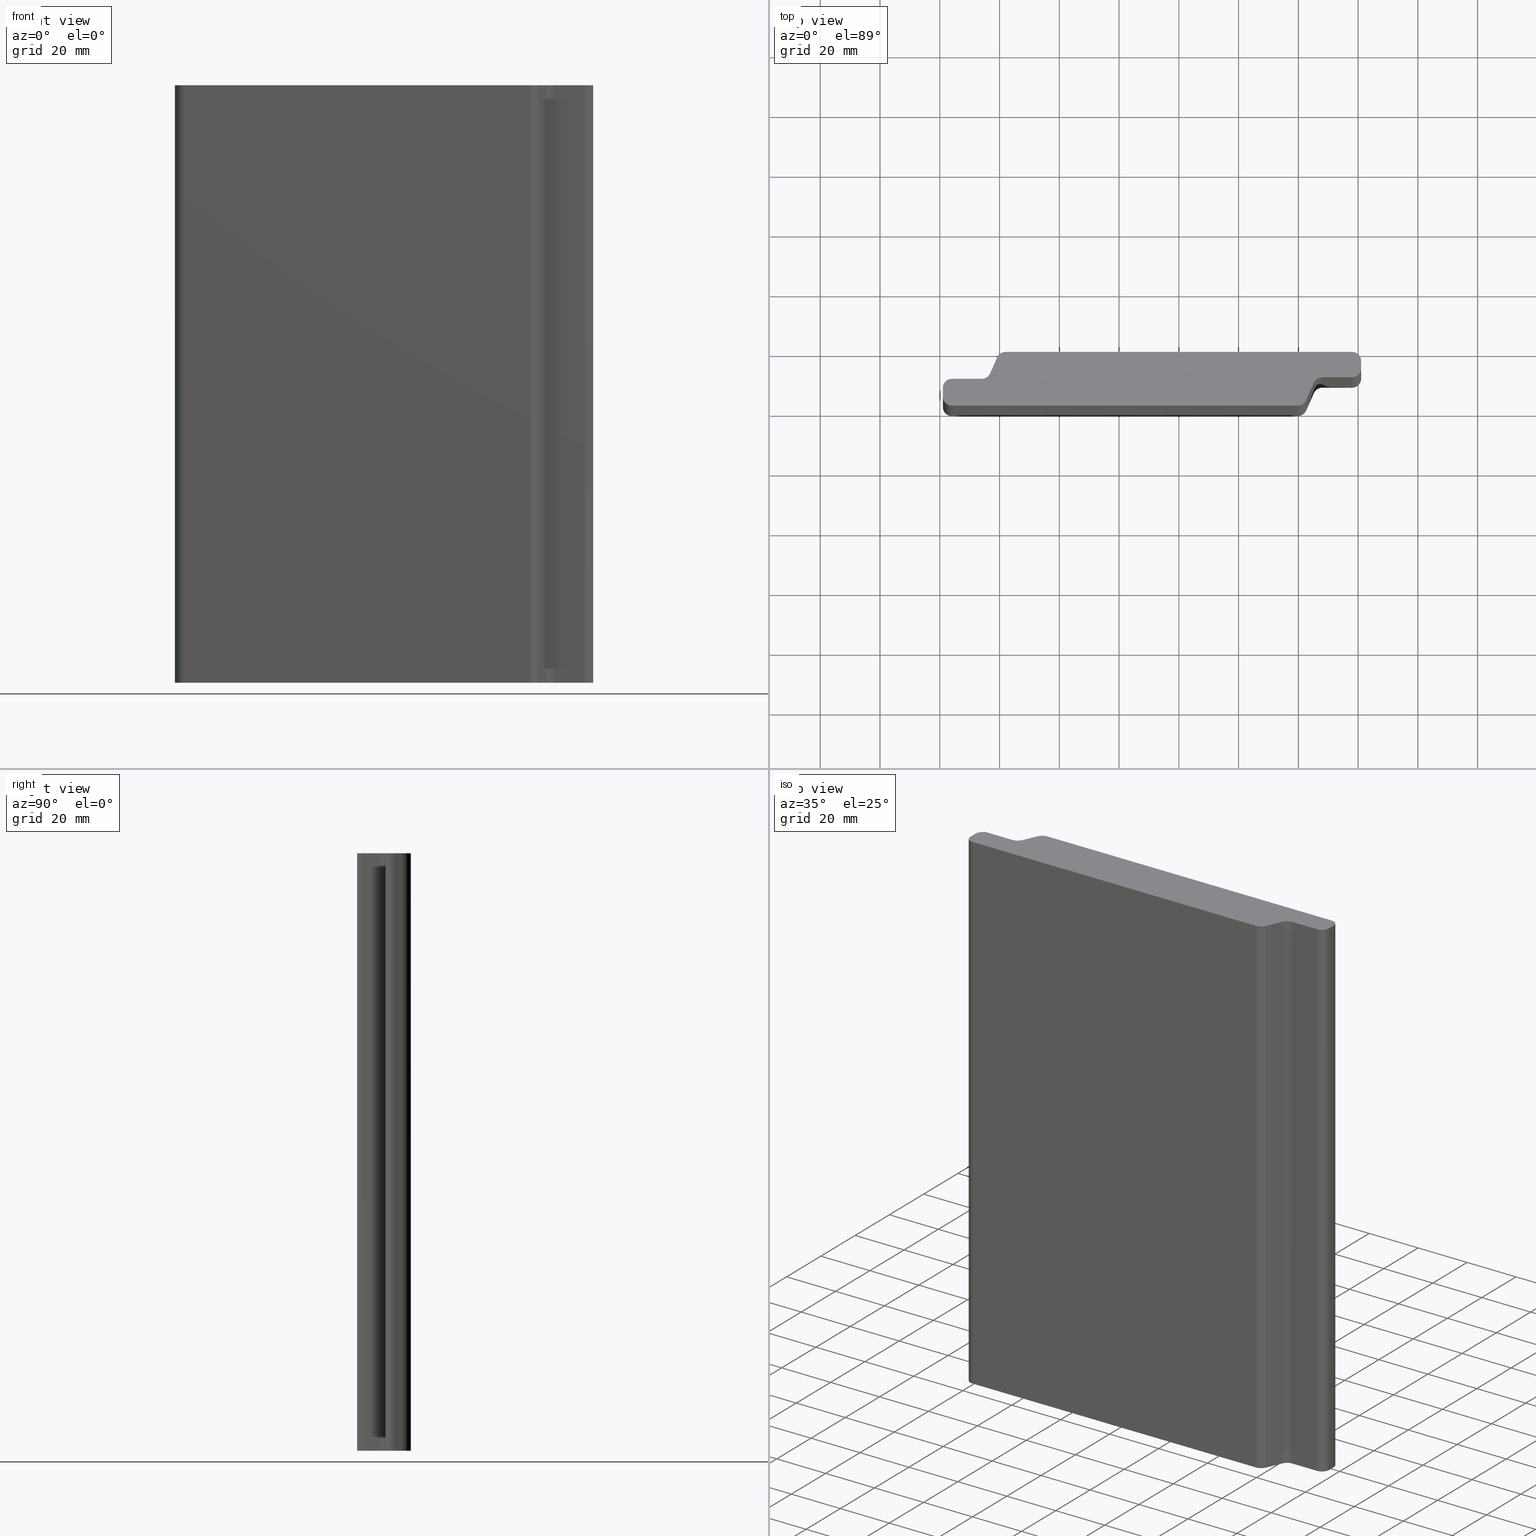
[diagram: canonical four-view strip — front | top / right | iso, engineering-drawing reading convention]
A machine part, canonical four-view strip (front | top / right | iso — engineering-drawing reading convention). The complete STEP part file that produces these views, byte-faithful:
ISO-10303-21;
HEADER;
/* Generated by software containing ST-Developer
 * from STEP Tools, Inc. (www.steptools.com) 
 */

FILE_DESCRIPTION(
/* description */ (''),
/* implementation_level */ '2;1');

FILE_NAME(
/* name */ 
'C:/Users/Eigenaar/Documents/Andrew/Ventura Welding (Workshop)/For Con
struction 2021/PlatoWood profile drawings/PlatoWood profiles, STEP/Pla
toWood 18x140 P01 (Channelsiding).step',
/* time_stamp */ '2021-11-11T07:43:40+01:00',
/* author */ (''),
/* organization */ (''),
/* preprocessor_version */ 'ST-DEVELOPER v18.1',
/* originating_system */ 'Autodesk Translation Framework v10.10.0.1391',

/* authorisation */ '');

FILE_SCHEMA (('AUTOMOTIVE_DESIGN { 1 0 10303 214 3 1 1 }'));
ENDSEC;

DATA;
#10=MECHANICAL_DESIGN_GEOMETRIC_PRESENTATION_REPRESENTATION('',(#13),#595);
#11=SHAPE_REPRESENTATION_RELATIONSHIP('SRR','None',#602,#12);
#12=ADVANCED_BREP_SHAPE_REPRESENTATION('',(#14),#594);
#13=STYLED_ITEM('',(#612),#14);
#14=MANIFOLD_SOLID_BREP('Body1',#343);
#15=CIRCLE('',#359,2.99999999999998);
#16=CIRCLE('',#360,2.99999999999998);
#17=CIRCLE('',#363,2.99999999595948);
#18=CIRCLE('',#364,2.99999999595948);
#19=CIRCLE('',#367,2.99999999996857);
#20=CIRCLE('',#368,2.99999999996857);
#21=CIRCLE('',#371,2.99999999996301);
#22=CIRCLE('',#372,2.99999999996301);
#23=CIRCLE('',#375,2.99999999999999);
#24=CIRCLE('',#376,2.99999999999999);
#25=CIRCLE('',#379,2.99999999482045);
#26=CIRCLE('',#380,2.99999999482045);
#27=CIRCLE('',#383,2.99999999999422);
#28=CIRCLE('',#384,2.99999999999422);
#29=CIRCLE('',#387,3.00000005179335);
#30=CIRCLE('',#388,3.00000005179335);
#31=CYLINDRICAL_SURFACE('',#358,2.99999999999998);
#32=CYLINDRICAL_SURFACE('',#362,2.99999999595948);
#33=CYLINDRICAL_SURFACE('',#366,2.99999999996857);
#34=CYLINDRICAL_SURFACE('',#370,2.99999999996301);
#35=CYLINDRICAL_SURFACE('',#374,2.99999999999999);
#36=CYLINDRICAL_SURFACE('',#378,2.99999999482045);
#37=CYLINDRICAL_SURFACE('',#382,2.99999999999422);
#38=CYLINDRICAL_SURFACE('',#386,3.00000005179335);
#39=FACE_OUTER_BOUND('',#57,.T.);
#40=FACE_OUTER_BOUND('',#58,.T.);
#41=FACE_OUTER_BOUND('',#59,.T.);
#42=FACE_OUTER_BOUND('',#60,.T.);
#43=FACE_OUTER_BOUND('',#61,.T.);
#44=FACE_OUTER_BOUND('',#62,.T.);
#45=FACE_OUTER_BOUND('',#63,.T.);
#46=FACE_OUTER_BOUND('',#64,.T.);
#47=FACE_OUTER_BOUND('',#65,.T.);
#48=FACE_OUTER_BOUND('',#66,.T.);
#49=FACE_OUTER_BOUND('',#67,.T.);
#50=FACE_OUTER_BOUND('',#68,.T.);
#51=FACE_OUTER_BOUND('',#69,.T.);
#52=FACE_OUTER_BOUND('',#70,.T.);
#53=FACE_OUTER_BOUND('',#71,.T.);
#54=FACE_OUTER_BOUND('',#72,.T.);
#55=FACE_OUTER_BOUND('',#73,.T.);
#56=FACE_OUTER_BOUND('',#74,.T.);
#57=EDGE_LOOP('',(#219,#220,#221,#222));
#58=EDGE_LOOP('',(#223,#224,#225,#226));
#59=EDGE_LOOP('',(#227,#228,#229,#230));
#60=EDGE_LOOP('',(#231,#232,#233,#234));
#61=EDGE_LOOP('',(#235,#236,#237,#238));
#62=EDGE_LOOP('',(#239,#240,#241,#242));
#63=EDGE_LOOP('',(#243,#244,#245,#246));
#64=EDGE_LOOP('',(#247,#248,#249,#250));
#65=EDGE_LOOP('',(#251,#252,#253,#254));
#66=EDGE_LOOP('',(#255,#256,#257,#258));
#67=EDGE_LOOP('',(#259,#260,#261,#262));
#68=EDGE_LOOP('',(#263,#264,#265,#266));
#69=EDGE_LOOP('',(#267,#268,#269,#270));
#70=EDGE_LOOP('',(#271,#272,#273,#274));
#71=EDGE_LOOP('',(#275,#276,#277,#278));
#72=EDGE_LOOP('',(#279,#280,#281,#282));
#73=EDGE_LOOP('',(#283,#284,#285,#286,#287,#288,#289,#290,#291,#292,#293,
#294,#295,#296,#297,#298));
#74=EDGE_LOOP('',(#299,#300,#301,#302,#303,#304,#305,#306,#307,#308,#309,
#310,#311,#312,#313,#314));
#75=LINE('',#497,#107);
#76=LINE('',#499,#108);
#77=LINE('',#501,#109);
#78=LINE('',#502,#110);
#79=LINE('',#508,#111);
#80=LINE('',#511,#112);
#81=LINE('',#513,#113);
#82=LINE('',#514,#114);
#83=LINE('',#520,#115);
#84=LINE('',#523,#116);
#85=LINE('',#525,#117);
#86=LINE('',#526,#118);
#87=LINE('',#532,#119);
#88=LINE('',#535,#120);
#89=LINE('',#537,#121);
#90=LINE('',#538,#122);
#91=LINE('',#544,#123);
#92=LINE('',#547,#124);
#93=LINE('',#549,#125);
#94=LINE('',#550,#126);
#95=LINE('',#556,#127);
#96=LINE('',#559,#128);
#97=LINE('',#561,#129);
#98=LINE('',#562,#130);
#99=LINE('',#568,#131);
#100=LINE('',#571,#132);
#101=LINE('',#573,#133);
#102=LINE('',#574,#134);
#103=LINE('',#580,#135);
#104=LINE('',#583,#136);
#105=LINE('',#585,#137);
#106=LINE('',#586,#138);
#107=VECTOR('',#395,10.);
#108=VECTOR('',#396,10.);
#109=VECTOR('',#397,10.);
#110=VECTOR('',#398,10.);
#111=VECTOR('',#405,10.);
#112=VECTOR('',#408,10.);
#113=VECTOR('',#409,10.);
#114=VECTOR('',#410,10.);
#115=VECTOR('',#417,10.);
#116=VECTOR('',#420,10.);
#117=VECTOR('',#421,10.);
#118=VECTOR('',#422,10.);
#119=VECTOR('',#429,10.);
#120=VECTOR('',#432,10.);
#121=VECTOR('',#433,10.);
#122=VECTOR('',#434,10.);
#123=VECTOR('',#441,10.);
#124=VECTOR('',#444,10.);
#125=VECTOR('',#445,10.);
#126=VECTOR('',#446,10.);
#127=VECTOR('',#453,10.);
#128=VECTOR('',#456,10.);
#129=VECTOR('',#457,10.);
#130=VECTOR('',#458,10.);
#131=VECTOR('',#465,10.);
#132=VECTOR('',#468,10.);
#133=VECTOR('',#469,10.);
#134=VECTOR('',#470,10.);
#135=VECTOR('',#477,10.);
#136=VECTOR('',#480,10.);
#137=VECTOR('',#481,10.);
#138=VECTOR('',#482,10.);
#139=VERTEX_POINT('',#495);
#140=VERTEX_POINT('',#496);
#141=VERTEX_POINT('',#498);
#142=VERTEX_POINT('',#500);
#143=VERTEX_POINT('',#504);
#144=VERTEX_POINT('',#506);
#145=VERTEX_POINT('',#510);
#146=VERTEX_POINT('',#512);
#147=VERTEX_POINT('',#516);
#148=VERTEX_POINT('',#518);
#149=VERTEX_POINT('',#522);
#150=VERTEX_POINT('',#524);
#151=VERTEX_POINT('',#528);
#152=VERTEX_POINT('',#530);
#153=VERTEX_POINT('',#534);
#154=VERTEX_POINT('',#536);
#155=VERTEX_POINT('',#540);
#156=VERTEX_POINT('',#542);
#157=VERTEX_POINT('',#546);
#158=VERTEX_POINT('',#548);
#159=VERTEX_POINT('',#552);
#160=VERTEX_POINT('',#554);
#161=VERTEX_POINT('',#558);
#162=VERTEX_POINT('',#560);
#163=VERTEX_POINT('',#564);
#164=VERTEX_POINT('',#566);
#165=VERTEX_POINT('',#570);
#166=VERTEX_POINT('',#572);
#167=VERTEX_POINT('',#576);
#168=VERTEX_POINT('',#578);
#169=VERTEX_POINT('',#582);
#170=VERTEX_POINT('',#584);
#171=EDGE_CURVE('',#139,#140,#75,.T.);
#172=EDGE_CURVE('',#140,#141,#76,.T.);
#173=EDGE_CURVE('',#142,#141,#77,.T.);
#174=EDGE_CURVE('',#139,#142,#78,.T.);
#175=EDGE_CURVE('',#139,#143,#15,.T.);
#176=EDGE_CURVE('',#144,#142,#16,.T.);
#177=EDGE_CURVE('',#143,#144,#79,.T.);
#178=EDGE_CURVE('',#145,#143,#80,.T.);
#179=EDGE_CURVE('',#146,#144,#81,.T.);
#180=EDGE_CURVE('',#145,#146,#82,.T.);
#181=EDGE_CURVE('',#147,#145,#17,.T.);
#182=EDGE_CURVE('',#148,#146,#18,.T.);
#183=EDGE_CURVE('',#147,#148,#83,.T.);
#184=EDGE_CURVE('',#149,#147,#84,.T.);
#185=EDGE_CURVE('',#150,#148,#85,.T.);
#186=EDGE_CURVE('',#149,#150,#86,.T.);
#187=EDGE_CURVE('',#151,#149,#19,.T.);
#188=EDGE_CURVE('',#152,#150,#20,.T.);
#189=EDGE_CURVE('',#151,#152,#87,.T.);
#190=EDGE_CURVE('',#153,#151,#88,.T.);
#191=EDGE_CURVE('',#154,#152,#89,.T.);
#192=EDGE_CURVE('',#153,#154,#90,.T.);
#193=EDGE_CURVE('',#155,#153,#21,.T.);
#194=EDGE_CURVE('',#156,#154,#22,.T.);
#195=EDGE_CURVE('',#155,#156,#91,.T.);
#196=EDGE_CURVE('',#157,#155,#92,.T.);
#197=EDGE_CURVE('',#158,#156,#93,.T.);
#198=EDGE_CURVE('',#157,#158,#94,.T.);
#199=EDGE_CURVE('',#157,#159,#23,.T.);
#200=EDGE_CURVE('',#160,#158,#24,.T.);
#201=EDGE_CURVE('',#159,#160,#95,.T.);
#202=EDGE_CURVE('',#161,#159,#96,.T.);
#203=EDGE_CURVE('',#162,#160,#97,.T.);
#204=EDGE_CURVE('',#161,#162,#98,.T.);
#205=EDGE_CURVE('',#163,#161,#25,.T.);
#206=EDGE_CURVE('',#164,#162,#26,.T.);
#207=EDGE_CURVE('',#163,#164,#99,.T.);
#208=EDGE_CURVE('',#165,#163,#100,.T.);
#209=EDGE_CURVE('',#166,#164,#101,.T.);
#210=EDGE_CURVE('',#165,#166,#102,.T.);
#211=EDGE_CURVE('',#167,#165,#27,.T.);
#212=EDGE_CURVE('',#168,#166,#28,.T.);
#213=EDGE_CURVE('',#167,#168,#103,.T.);
#214=EDGE_CURVE('',#169,#167,#104,.T.);
#215=EDGE_CURVE('',#170,#168,#105,.T.);
#216=EDGE_CURVE('',#169,#170,#106,.T.);
#217=EDGE_CURVE('',#140,#169,#29,.T.);
#218=EDGE_CURVE('',#141,#170,#30,.T.);
#219=ORIENTED_EDGE('',*,*,#171,.T.);
#220=ORIENTED_EDGE('',*,*,#172,.T.);
#221=ORIENTED_EDGE('',*,*,#173,.F.);
#222=ORIENTED_EDGE('',*,*,#174,.F.);
#223=ORIENTED_EDGE('',*,*,#175,.F.);
#224=ORIENTED_EDGE('',*,*,#174,.T.);
#225=ORIENTED_EDGE('',*,*,#176,.F.);
#226=ORIENTED_EDGE('',*,*,#177,.F.);
#227=ORIENTED_EDGE('',*,*,#178,.T.);
#228=ORIENTED_EDGE('',*,*,#177,.T.);
#229=ORIENTED_EDGE('',*,*,#179,.F.);
#230=ORIENTED_EDGE('',*,*,#180,.F.);
#231=ORIENTED_EDGE('',*,*,#181,.T.);
#232=ORIENTED_EDGE('',*,*,#180,.T.);
#233=ORIENTED_EDGE('',*,*,#182,.F.);
#234=ORIENTED_EDGE('',*,*,#183,.F.);
#235=ORIENTED_EDGE('',*,*,#184,.T.);
#236=ORIENTED_EDGE('',*,*,#183,.T.);
#237=ORIENTED_EDGE('',*,*,#185,.F.);
#238=ORIENTED_EDGE('',*,*,#186,.F.);
#239=ORIENTED_EDGE('',*,*,#187,.T.);
#240=ORIENTED_EDGE('',*,*,#186,.T.);
#241=ORIENTED_EDGE('',*,*,#188,.F.);
#242=ORIENTED_EDGE('',*,*,#189,.F.);
#243=ORIENTED_EDGE('',*,*,#190,.T.);
#244=ORIENTED_EDGE('',*,*,#189,.T.);
#245=ORIENTED_EDGE('',*,*,#191,.F.);
#246=ORIENTED_EDGE('',*,*,#192,.F.);
#247=ORIENTED_EDGE('',*,*,#193,.T.);
#248=ORIENTED_EDGE('',*,*,#192,.T.);
#249=ORIENTED_EDGE('',*,*,#194,.F.);
#250=ORIENTED_EDGE('',*,*,#195,.F.);
#251=ORIENTED_EDGE('',*,*,#196,.T.);
#252=ORIENTED_EDGE('',*,*,#195,.T.);
#253=ORIENTED_EDGE('',*,*,#197,.F.);
#254=ORIENTED_EDGE('',*,*,#198,.F.);
#255=ORIENTED_EDGE('',*,*,#199,.F.);
#256=ORIENTED_EDGE('',*,*,#198,.T.);
#257=ORIENTED_EDGE('',*,*,#200,.F.);
#258=ORIENTED_EDGE('',*,*,#201,.F.);
#259=ORIENTED_EDGE('',*,*,#202,.T.);
#260=ORIENTED_EDGE('',*,*,#201,.T.);
#261=ORIENTED_EDGE('',*,*,#203,.F.);
#262=ORIENTED_EDGE('',*,*,#204,.F.);
#263=ORIENTED_EDGE('',*,*,#205,.T.);
#264=ORIENTED_EDGE('',*,*,#204,.T.);
#265=ORIENTED_EDGE('',*,*,#206,.F.);
#266=ORIENTED_EDGE('',*,*,#207,.F.);
#267=ORIENTED_EDGE('',*,*,#208,.T.);
#268=ORIENTED_EDGE('',*,*,#207,.T.);
#269=ORIENTED_EDGE('',*,*,#209,.F.);
#270=ORIENTED_EDGE('',*,*,#210,.F.);
#271=ORIENTED_EDGE('',*,*,#211,.T.);
#272=ORIENTED_EDGE('',*,*,#210,.T.);
#273=ORIENTED_EDGE('',*,*,#212,.F.);
#274=ORIENTED_EDGE('',*,*,#213,.F.);
#275=ORIENTED_EDGE('',*,*,#214,.T.);
#276=ORIENTED_EDGE('',*,*,#213,.T.);
#277=ORIENTED_EDGE('',*,*,#215,.F.);
#278=ORIENTED_EDGE('',*,*,#216,.F.);
#279=ORIENTED_EDGE('',*,*,#217,.T.);
#280=ORIENTED_EDGE('',*,*,#216,.T.);
#281=ORIENTED_EDGE('',*,*,#218,.F.);
#282=ORIENTED_EDGE('',*,*,#172,.F.);
#283=ORIENTED_EDGE('',*,*,#218,.T.);
#284=ORIENTED_EDGE('',*,*,#215,.T.);
#285=ORIENTED_EDGE('',*,*,#212,.T.);
#286=ORIENTED_EDGE('',*,*,#209,.T.);
#287=ORIENTED_EDGE('',*,*,#206,.T.);
#288=ORIENTED_EDGE('',*,*,#203,.T.);
#289=ORIENTED_EDGE('',*,*,#200,.T.);
#290=ORIENTED_EDGE('',*,*,#197,.T.);
#291=ORIENTED_EDGE('',*,*,#194,.T.);
#292=ORIENTED_EDGE('',*,*,#191,.T.);
#293=ORIENTED_EDGE('',*,*,#188,.T.);
#294=ORIENTED_EDGE('',*,*,#185,.T.);
#295=ORIENTED_EDGE('',*,*,#182,.T.);
#296=ORIENTED_EDGE('',*,*,#179,.T.);
#297=ORIENTED_EDGE('',*,*,#176,.T.);
#298=ORIENTED_EDGE('',*,*,#173,.T.);
#299=ORIENTED_EDGE('',*,*,#217,.F.);
#300=ORIENTED_EDGE('',*,*,#171,.F.);
#301=ORIENTED_EDGE('',*,*,#175,.T.);
#302=ORIENTED_EDGE('',*,*,#178,.F.);
#303=ORIENTED_EDGE('',*,*,#181,.F.);
#304=ORIENTED_EDGE('',*,*,#184,.F.);
#305=ORIENTED_EDGE('',*,*,#187,.F.);
#306=ORIENTED_EDGE('',*,*,#190,.F.);
#307=ORIENTED_EDGE('',*,*,#193,.F.);
#308=ORIENTED_EDGE('',*,*,#196,.F.);
#309=ORIENTED_EDGE('',*,*,#199,.T.);
#310=ORIENTED_EDGE('',*,*,#202,.F.);
#311=ORIENTED_EDGE('',*,*,#205,.F.);
#312=ORIENTED_EDGE('',*,*,#208,.F.);
#313=ORIENTED_EDGE('',*,*,#211,.F.);
#314=ORIENTED_EDGE('',*,*,#214,.F.);
#315=PLANE('',#357);
#316=PLANE('',#361);
#317=PLANE('',#365);
#318=PLANE('',#369);
#319=PLANE('',#373);
#320=PLANE('',#377);
#321=PLANE('',#381);
#322=PLANE('',#385);
#323=PLANE('',#389);
#324=PLANE('',#390);
#325=ADVANCED_FACE('',(#39),#315,.T.);
#326=ADVANCED_FACE('',(#40),#31,.F.);
#327=ADVANCED_FACE('',(#41),#316,.T.);
#328=ADVANCED_FACE('',(#42),#32,.T.);
#329=ADVANCED_FACE('',(#43),#317,.T.);
#330=ADVANCED_FACE('',(#44),#33,.T.);
#331=ADVANCED_FACE('',(#45),#318,.T.);
#332=ADVANCED_FACE('',(#46),#34,.T.);
#333=ADVANCED_FACE('',(#47),#319,.T.);
#334=ADVANCED_FACE('',(#48),#35,.F.);
#335=ADVANCED_FACE('',(#49),#320,.T.);
#336=ADVANCED_FACE('',(#50),#36,.T.);
#337=ADVANCED_FACE('',(#51),#321,.T.);
#338=ADVANCED_FACE('',(#52),#37,.T.);
#339=ADVANCED_FACE('',(#53),#322,.T.);
#340=ADVANCED_FACE('',(#54),#38,.T.);
#341=ADVANCED_FACE('',(#55),#323,.T.);
#342=ADVANCED_FACE('',(#56),#324,.F.);
#343=CLOSED_SHELL('',(#325,#326,#327,#328,#329,#330,#331,#332,#333,#334,
#335,#336,#337,#338,#339,#340,#341,#342));
#344=DERIVED_UNIT_ELEMENT(#346,1.);
#345=DERIVED_UNIT_ELEMENT(#597,-3.);
#346=(
MASS_UNIT()
NAMED_UNIT(*)
SI_UNIT(.KILO.,.GRAM.)
);
#347=DERIVED_UNIT((#344,#345));
#348=MEASURE_REPRESENTATION_ITEM('density measure',
POSITIVE_RATIO_MEASURE(7850.),#347);
#349=PROPERTY_DEFINITION_REPRESENTATION(#354,#351);
#350=PROPERTY_DEFINITION_REPRESENTATION(#355,#352);
#351=REPRESENTATION('material name',(#353),#594);
#352=REPRESENTATION('density',(#348),#594);
#353=DESCRIPTIVE_REPRESENTATION_ITEM('Steel','Steel');
#354=PROPERTY_DEFINITION('material property','material name',#604);
#355=PROPERTY_DEFINITION('material property','density of part',#604);
#356=AXIS2_PLACEMENT_3D('placement',#493,#391,#392);
#357=AXIS2_PLACEMENT_3D('',#494,#393,#394);
#358=AXIS2_PLACEMENT_3D('',#503,#399,#400);
#359=AXIS2_PLACEMENT_3D('',#505,#401,#402);
#360=AXIS2_PLACEMENT_3D('',#507,#403,#404);
#361=AXIS2_PLACEMENT_3D('',#509,#406,#407);
#362=AXIS2_PLACEMENT_3D('',#515,#411,#412);
#363=AXIS2_PLACEMENT_3D('',#517,#413,#414);
#364=AXIS2_PLACEMENT_3D('',#519,#415,#416);
#365=AXIS2_PLACEMENT_3D('',#521,#418,#419);
#366=AXIS2_PLACEMENT_3D('',#527,#423,#424);
#367=AXIS2_PLACEMENT_3D('',#529,#425,#426);
#368=AXIS2_PLACEMENT_3D('',#531,#427,#428);
#369=AXIS2_PLACEMENT_3D('',#533,#430,#431);
#370=AXIS2_PLACEMENT_3D('',#539,#435,#436);
#371=AXIS2_PLACEMENT_3D('',#541,#437,#438);
#372=AXIS2_PLACEMENT_3D('',#543,#439,#440);
#373=AXIS2_PLACEMENT_3D('',#545,#442,#443);
#374=AXIS2_PLACEMENT_3D('',#551,#447,#448);
#375=AXIS2_PLACEMENT_3D('',#553,#449,#450);
#376=AXIS2_PLACEMENT_3D('',#555,#451,#452);
#377=AXIS2_PLACEMENT_3D('',#557,#454,#455);
#378=AXIS2_PLACEMENT_3D('',#563,#459,#460);
#379=AXIS2_PLACEMENT_3D('',#565,#461,#462);
#380=AXIS2_PLACEMENT_3D('',#567,#463,#464);
#381=AXIS2_PLACEMENT_3D('',#569,#466,#467);
#382=AXIS2_PLACEMENT_3D('',#575,#471,#472);
#383=AXIS2_PLACEMENT_3D('',#577,#473,#474);
#384=AXIS2_PLACEMENT_3D('',#579,#475,#476);
#385=AXIS2_PLACEMENT_3D('',#581,#478,#479);
#386=AXIS2_PLACEMENT_3D('',#587,#483,#484);
#387=AXIS2_PLACEMENT_3D('',#588,#485,#486);
#388=AXIS2_PLACEMENT_3D('',#589,#487,#488);
#389=AXIS2_PLACEMENT_3D('',#590,#489,#490);
#390=AXIS2_PLACEMENT_3D('',#591,#491,#492);
#391=DIRECTION('axis',(0.,0.,1.));
#392=DIRECTION('refdir',(1.,0.,0.));
#393=DIRECTION('center_axis',(-2.05619220719211E-8,-1.,0.));
#394=DIRECTION('ref_axis',(1.,-2.05619220719211E-8,0.));
#395=DIRECTION('',(1.,-2.05619220719211E-8,0.));
#396=DIRECTION('',(0.,0.,1.));
#397=DIRECTION('',(1.,-2.05619220719211E-8,0.));
#398=DIRECTION('',(0.,0.,1.));
#399=DIRECTION('center_axis',(0.,0.,1.));
#400=DIRECTION('ref_axis',(2.05619225350045E-8,1.,0.));
#401=DIRECTION('center_axis',(0.,0.,1.));
#402=DIRECTION('ref_axis',(2.05619225350045E-8,1.,0.));
#403=DIRECTION('center_axis',(0.,0.,-1.));
#404=DIRECTION('ref_axis',(2.05619225350045E-8,1.,0.));
#405=DIRECTION('',(0.,0.,1.));
#406=DIRECTION('center_axis',(0.9135454572646,-0.406736643924803,0.));
#407=DIRECTION('ref_axis',(0.406736643924803,0.9135454572646,0.));
#408=DIRECTION('',(0.406736643924803,0.9135454572646,0.));
#409=DIRECTION('',(0.406736643924803,0.9135454572646,0.));
#410=DIRECTION('',(0.,0.,1.));
#411=DIRECTION('center_axis',(0.,0.,1.));
#412=DIRECTION('ref_axis',(-1.09164973504214E-9,-1.,0.));
#413=DIRECTION('center_axis',(0.,0.,1.));
#414=DIRECTION('ref_axis',(-1.09164973504214E-9,-1.,0.));
#415=DIRECTION('center_axis',(0.,0.,1.));
#416=DIRECTION('ref_axis',(-1.09164973504214E-9,-1.,0.));
#417=DIRECTION('',(0.,0.,1.));
#418=DIRECTION('center_axis',(-1.0916506482526E-9,-1.,0.));
#419=DIRECTION('ref_axis',(1.,-1.0916506482526E-9,0.));
#420=DIRECTION('',(1.,-1.0916506482526E-9,0.));
#421=DIRECTION('',(1.,-1.0916506482526E-9,0.));
#422=DIRECTION('',(0.,0.,1.));
#423=DIRECTION('center_axis',(0.,0.,1.));
#424=DIRECTION('ref_axis',(-1.,-3.47869881052861E-14,0.));
#425=DIRECTION('center_axis',(0.,0.,1.));
#426=DIRECTION('ref_axis',(-1.,-3.47869881052861E-14,0.));
#427=DIRECTION('center_axis',(0.,0.,1.));
#428=DIRECTION('ref_axis',(-1.,-3.47869881052861E-14,0.));
#429=DIRECTION('',(0.,0.,1.));
#430=DIRECTION('center_axis',(-1.,-4.44089218590522E-14,0.));
#431=DIRECTION('ref_axis',(4.44089218590522E-14,-1.,0.));
#432=DIRECTION('',(4.44089218590522E-14,-1.,0.));
#433=DIRECTION('',(4.44089218590522E-14,-1.,0.));
#434=DIRECTION('',(0.,0.,1.));
#435=DIRECTION('center_axis',(0.,0.,1.));
#436=DIRECTION('ref_axis',(3.75699471537785E-12,1.,0.));
#437=DIRECTION('center_axis',(0.,0.,1.));
#438=DIRECTION('ref_axis',(3.75699471537785E-12,1.,0.));
#439=DIRECTION('center_axis',(0.,0.,1.));
#440=DIRECTION('ref_axis',(3.75699471537785E-12,1.,0.));
#441=DIRECTION('',(0.,0.,1.));
#442=DIRECTION('center_axis',(3.75708151689634E-12,1.,0.));
#443=DIRECTION('ref_axis',(-1.,3.75708151689634E-12,0.));
#444=DIRECTION('',(-1.,3.75708151689634E-12,0.));
#445=DIRECTION('',(-1.,3.75708151689634E-12,0.));
#446=DIRECTION('',(0.,0.,1.));
#447=DIRECTION('center_axis',(0.,0.,1.));
#448=DIRECTION('ref_axis',(-3.75699471533154E-12,-1.,0.));
#449=DIRECTION('center_axis',(0.,0.,1.));
#450=DIRECTION('ref_axis',(-3.75699471533154E-12,-1.,0.));
#451=DIRECTION('center_axis',(0.,0.,-1.));
#452=DIRECTION('ref_axis',(-3.75699471533154E-12,-1.,0.));
#453=DIRECTION('',(0.,0.,1.));
#454=DIRECTION('center_axis',(-0.913545457702009,0.406736642942366,0.));
#455=DIRECTION('ref_axis',(-0.406736642942366,-0.913545457702009,0.));
#456=DIRECTION('',(-0.406736642942366,-0.913545457702009,0.));
#457=DIRECTION('',(-0.406736642942366,-0.913545457702009,0.));
#458=DIRECTION('',(0.,0.,1.));
#459=DIRECTION('center_axis',(0.,0.,1.));
#460=DIRECTION('ref_axis',(9.29348451652492E-10,1.,0.));
#461=DIRECTION('center_axis',(0.,0.,1.));
#462=DIRECTION('ref_axis',(9.29348451652492E-10,1.,0.));
#463=DIRECTION('center_axis',(0.,0.,1.));
#464=DIRECTION('ref_axis',(9.29348451652492E-10,1.,0.));
#465=DIRECTION('',(0.,0.,1.));
#466=DIRECTION('center_axis',(9.29340653877338E-10,1.,0.));
#467=DIRECTION('ref_axis',(-1.,9.29340653877338E-10,0.));
#468=DIRECTION('',(-1.,9.29340653877338E-10,0.));
#469=DIRECTION('',(-1.,9.29340653877338E-10,0.));
#470=DIRECTION('',(0.,0.,1.));
#471=DIRECTION('center_axis',(0.,0.,1.));
#472=DIRECTION('ref_axis',(1.,-2.22044604925459E-15,0.));
#473=DIRECTION('center_axis',(0.,0.,1.));
#474=DIRECTION('ref_axis',(1.,-2.22044604925459E-15,0.));
#475=DIRECTION('center_axis',(0.,0.,1.));
#476=DIRECTION('ref_axis',(1.,-2.22044604925459E-15,0.));
#477=DIRECTION('',(0.,0.,1.));
#478=DIRECTION('center_axis',(1.,-1.42108545158405E-14,0.));
#479=DIRECTION('ref_axis',(1.42108545158405E-14,1.,0.));
#480=DIRECTION('',(1.42108545158405E-14,1.,0.));
#481=DIRECTION('',(1.42108545158405E-14,1.,0.));
#482=DIRECTION('',(0.,0.,1.));
#483=DIRECTION('center_axis',(0.,0.,1.));
#484=DIRECTION('ref_axis',(-2.05619192194194E-8,-1.,0.));
#485=DIRECTION('center_axis',(0.,0.,1.));
#486=DIRECTION('ref_axis',(-2.05619192194194E-8,-1.,0.));
#487=DIRECTION('center_axis',(0.,0.,1.));
#488=DIRECTION('ref_axis',(-2.05619192194194E-8,-1.,0.));
#489=DIRECTION('center_axis',(0.,0.,1.));
#490=DIRECTION('ref_axis',(1.,0.,0.));
#491=DIRECTION('center_axis',(0.,0.,1.));
#492=DIRECTION('ref_axis',(1.,0.,0.));
#493=CARTESIAN_POINT('',(0.,0.,0.));
#494=CARTESIAN_POINT('Origin',(47.9705823498481,9.50000002470876,0.));
#495=CARTESIAN_POINT('',(47.9705823498481,9.50000002470876,0.));
#496=CARTESIAN_POINT('',(58.0223594149081,9.4999998180249,0.));
#497=CARTESIAN_POINT('',(47.9705823498481,9.50000002470876,0.));
#498=CARTESIAN_POINT('',(58.0223594149081,9.4999998180249,200.));
#499=CARTESIAN_POINT('',(58.0223594149081,9.4999998180249,0.));
#500=CARTESIAN_POINT('',(47.9705823498481,9.50000002470876,200.));
#501=CARTESIAN_POINT('',(47.9705823498481,9.50000002470876,200.));
#502=CARTESIAN_POINT('',(47.9705823498481,9.50000002470876,0.));
#503=CARTESIAN_POINT('Origin',(47.9705822881623,6.50000002470877,0.));
#504=CARTESIAN_POINT('',(45.2299459163685,7.72020995648318,0.));
#505=CARTESIAN_POINT('Origin',(47.9705822881623,6.50000002470877,0.));
#506=CARTESIAN_POINT('',(45.2299459163685,7.72020995648318,200.));
#507=CARTESIAN_POINT('Origin',(47.9705822881623,6.50000002470877,200.));
#508=CARTESIAN_POINT('',(45.2299459163685,7.72020995648318,0.));
#509=CARTESIAN_POINT('Origin',(42.5851005520204,1.77979002172475,0.));
#510=CARTESIAN_POINT('',(42.5851005520204,1.77979002172475,0.));
#511=CARTESIAN_POINT('',(42.5851005520204,1.77979002172475,0.));
#512=CARTESIAN_POINT('',(42.5851005520204,1.77979002172476,200.));
#513=CARTESIAN_POINT('',(42.5851005520204,1.77979002172475,200.));
#514=CARTESIAN_POINT('',(42.5851005520204,1.77979002172475,0.));
#515=CARTESIAN_POINT('Origin',(39.8444641839178,2.9999999518557,0.));
#516=CARTESIAN_POINT('',(39.8444641806428,-4.41037778520226E-8,0.));
#517=CARTESIAN_POINT('Origin',(39.8444641839178,2.9999999518557,0.));
#518=CARTESIAN_POINT('',(39.8444641806428,-4.41037772969111E-8,200.));
#519=CARTESIAN_POINT('Origin',(39.8444641839178,2.9999999518557,200.));
#520=CARTESIAN_POINT('',(39.8444641806428,-4.41037778520226E-8,0.));
#521=CARTESIAN_POINT('Origin',(-75.9776404749192,8.23334978640429E-8,0.));
#522=CARTESIAN_POINT('',(-75.9776404749192,8.33395730204245E-8,0.));
#523=CARTESIAN_POINT('',(-75.9776404749192,8.23334978640429E-8,0.));
#524=CARTESIAN_POINT('',(-75.9776404749192,8.33395730204245E-8,200.));
#525=CARTESIAN_POINT('',(-75.9776404749192,8.23334978640429E-8,200.));
#526=CARTESIAN_POINT('',(-75.9776404749192,8.33395730204245E-8,0.));
#527=CARTESIAN_POINT('Origin',(-75.9776404716442,3.00000008330814,0.));
#528=CARTESIAN_POINT('',(-78.9776404716128,3.00000008330803,0.));
#529=CARTESIAN_POINT('Origin',(-75.9776404716442,3.00000008330814,0.));
#530=CARTESIAN_POINT('',(-78.9776404716128,3.00000008330803,200.));
#531=CARTESIAN_POINT('Origin',(-75.9776404716442,3.00000008330814,200.));
#532=CARTESIAN_POINT('',(-78.9776404716128,3.00000008330803,0.));
#533=CARTESIAN_POINT('Origin',(-78.9776404716129,6.00000002426274,0.));
#534=CARTESIAN_POINT('',(-78.9776404716129,6.00000002426274,0.));
#535=CARTESIAN_POINT('',(-78.9776404716129,6.00000002426274,0.));
#536=CARTESIAN_POINT('',(-78.9776404716129,6.00000002426274,200.));
#537=CARTESIAN_POINT('',(-78.9776404716129,6.00000002426274,200.));
#538=CARTESIAN_POINT('',(-78.9776404716129,6.00000002426274,0.));
#539=CARTESIAN_POINT('Origin',(-75.9776404716499,6.00000002426285,0.));
#540=CARTESIAN_POINT('',(-75.9776404716386,9.00000002422587,0.));
#541=CARTESIAN_POINT('Origin',(-75.9776404716499,6.00000002426285,0.));
#542=CARTESIAN_POINT('',(-75.9776404716386,9.00000002422587,200.));
#543=CARTESIAN_POINT('Origin',(-75.9776404716499,6.00000002426285,200.));
#544=CARTESIAN_POINT('',(-75.9776404716386,9.00000002422587,0.));
#545=CARTESIAN_POINT('Origin',(-65.9258632515248,9.0000000241881,0.));
#546=CARTESIAN_POINT('',(-65.9258632515248,9.0000000241881,0.));
#547=CARTESIAN_POINT('',(-65.9258632515248,9.0000000241881,0.));
#548=CARTESIAN_POINT('',(-65.9258632515248,9.0000000241881,200.));
#549=CARTESIAN_POINT('',(-65.9258632515248,9.0000000241881,200.));
#550=CARTESIAN_POINT('',(-65.9258632515248,9.0000000241881,0.));
#551=CARTESIAN_POINT('Origin',(-65.9258632515135,12.0000000241881,0.));
#552=CARTESIAN_POINT('',(-63.1852268784075,10.779790095361,0.));
#553=CARTESIAN_POINT('Origin',(-65.9258632515135,12.0000000241881,0.));
#554=CARTESIAN_POINT('',(-63.1852268784075,10.779790095361,200.));
#555=CARTESIAN_POINT('Origin',(-65.9258632515135,12.0000000241881,200.));
#556=CARTESIAN_POINT('',(-63.1852268784075,10.779790095361,0.));
#557=CARTESIAN_POINT('Origin',(-60.7629959023434,16.2202099446295,0.));
#558=CARTESIAN_POINT('',(-60.7629959023434,16.2202099446295,0.));
#559=CARTESIAN_POINT('',(-60.7629959023434,16.2202099446295,0.));
#560=CARTESIAN_POINT('',(-60.7629959023434,16.2202099446295,200.));
#561=CARTESIAN_POINT('',(-60.7629959023434,16.2202099446295,200.));
#562=CARTESIAN_POINT('',(-60.7629959023434,16.2202099446295,0.));
#563=CARTESIAN_POINT('Origin',(-58.0223595339691,15.0000000179091,0.));
#564=CARTESIAN_POINT('',(-58.022359531181,18.0000000127296,0.));
#565=CARTESIAN_POINT('Origin',(-58.0223595339691,15.0000000179091,0.));
#566=CARTESIAN_POINT('',(-58.022359531181,18.0000000127296,200.));
#567=CARTESIAN_POINT('Origin',(-58.0223595339691,15.0000000179091,200.));
#568=CARTESIAN_POINT('',(-58.022359531181,18.0000000127296,0.));
#569=CARTESIAN_POINT('Origin',(58.022359531181,17.9999999048845,0.));
#570=CARTESIAN_POINT('',(58.022359531181,17.9999999048845,0.));
#571=CARTESIAN_POINT('',(58.022359531181,17.9999999048845,0.));
#572=CARTESIAN_POINT('',(58.022359531181,17.9999999048845,200.));
#573=CARTESIAN_POINT('',(58.022359531181,17.9999999048845,200.));
#574=CARTESIAN_POINT('',(58.022359531181,17.9999999048845,0.));
#575=CARTESIAN_POINT('Origin',(58.022359528393,14.9999999048903,0.));
#576=CARTESIAN_POINT('',(61.0223595283873,14.9999999048903,0.));
#577=CARTESIAN_POINT('Origin',(58.022359528393,14.9999999048903,0.));
#578=CARTESIAN_POINT('',(61.0223595283873,14.9999999048903,200.));
#579=CARTESIAN_POINT('Origin',(58.022359528393,14.9999999048903,200.));
#580=CARTESIAN_POINT('',(61.0223595283873,14.9999999048903,0.));
#581=CARTESIAN_POINT('Origin',(61.0223595283872,12.4999998698182,0.));
#582=CARTESIAN_POINT('',(61.0223595283872,12.4999998698182,0.));
#583=CARTESIAN_POINT('',(61.0223595283872,12.4999998698182,0.));
#584=CARTESIAN_POINT('',(61.0223595283872,12.4999998698182,200.));
#585=CARTESIAN_POINT('',(61.0223595283872,12.4999998698182,200.));
#586=CARTESIAN_POINT('',(61.0223595283872,12.4999998698182,0.));
#587=CARTESIAN_POINT('Origin',(58.0223594765939,12.4999998698183,0.));
#588=CARTESIAN_POINT('Origin',(58.0223594765939,12.4999998698183,0.));
#589=CARTESIAN_POINT('Origin',(58.0223594765939,12.4999998698183,200.));
#590=CARTESIAN_POINT('Origin',(-8.97764047161282,8.99999998431291,200.));
#591=CARTESIAN_POINT('Origin',(-8.97764047161282,8.99999998431291,0.));
#592=UNCERTAINTY_MEASURE_WITH_UNIT(LENGTH_MEASURE(0.01),#596,
'DISTANCE_ACCURACY_VALUE',
'Maximum model space distance between geometric entities at asserted c
onnectivities');
#593=UNCERTAINTY_MEASURE_WITH_UNIT(LENGTH_MEASURE(0.01),#596,
'DISTANCE_ACCURACY_VALUE',
'Maximum model space distance between geometric entities at asserted c
onnectivities');
#594=(
GEOMETRIC_REPRESENTATION_CONTEXT(3)
GLOBAL_UNCERTAINTY_ASSIGNED_CONTEXT((#592))
GLOBAL_UNIT_ASSIGNED_CONTEXT((#596,#598,#599))
REPRESENTATION_CONTEXT('','3D')
);
#595=(
GEOMETRIC_REPRESENTATION_CONTEXT(3)
GLOBAL_UNCERTAINTY_ASSIGNED_CONTEXT((#593))
GLOBAL_UNIT_ASSIGNED_CONTEXT((#596,#598,#599))
REPRESENTATION_CONTEXT('','3D')
);
#596=(
LENGTH_UNIT()
NAMED_UNIT(*)
SI_UNIT(.MILLI.,.METRE.)
);
#597=(
LENGTH_UNIT()
NAMED_UNIT(*)
SI_UNIT($,.METRE.)
);
#598=(
NAMED_UNIT(*)
PLANE_ANGLE_UNIT()
SI_UNIT($,.RADIAN.)
);
#599=(
NAMED_UNIT(*)
SI_UNIT($,.STERADIAN.)
SOLID_ANGLE_UNIT()
);
#600=SHAPE_DEFINITION_REPRESENTATION(#601,#602);
#601=PRODUCT_DEFINITION_SHAPE('',$,#604);
#602=SHAPE_REPRESENTATION('',(#356),#594);
#603=PRODUCT_DEFINITION_CONTEXT('part definition',#608,'design');
#604=PRODUCT_DEFINITION('PlatoWood 18x140 P01 (Channelsiding)',
'PlatoWood 18x140 P01 (Channelsiding) v14',#605,#603);
#605=PRODUCT_DEFINITION_FORMATION('',$,#610);
#606=PRODUCT_RELATED_PRODUCT_CATEGORY(
'PlatoWood 18x140 P01 (Channelsiding) v14',
'PlatoWood 18x140 P01 (Channelsiding) v14',(#610));
#607=APPLICATION_PROTOCOL_DEFINITION('international standard',
'automotive_design',2009,#608);
#608=APPLICATION_CONTEXT(
'Core Data for Automotive Mechanical Design Process');
#609=PRODUCT_CONTEXT('part definition',#608,'mechanical');
#610=PRODUCT('PlatoWood 18x140 P01 (Channelsiding)',
'PlatoWood 18x140 P01 (Channelsiding) v14',$,(#609));
#611=PRESENTATION_STYLE_ASSIGNMENT((#613));
#612=PRESENTATION_STYLE_ASSIGNMENT((#614));
#613=SURFACE_STYLE_USAGE(.BOTH.,#615);
#614=SURFACE_STYLE_USAGE(.BOTH.,#616);
#615=SURFACE_SIDE_STYLE('',(#617));
#616=SURFACE_SIDE_STYLE('',(#618));
#617=SURFACE_STYLE_FILL_AREA(#619);
#618=SURFACE_STYLE_FILL_AREA(#620);
#619=FILL_AREA_STYLE('Steel - Satin',(#621));
#620=FILL_AREA_STYLE('3D Mahogany - Unfinished',(#622));
#621=FILL_AREA_STYLE_COLOUR('Steel - Satin',#623);
#622=FILL_AREA_STYLE_COLOUR('3D Mahogany - Unfinished',#624);
#623=COLOUR_RGB('Steel - Satin',0.627450980392157,0.627450980392157,0.627450980392157);
#624=COLOUR_RGB('3D Mahogany - Unfinished',0.568627450980392,0.407843137254902,
0.313725490196078);
ENDSEC;
END-ISO-10303-21;
